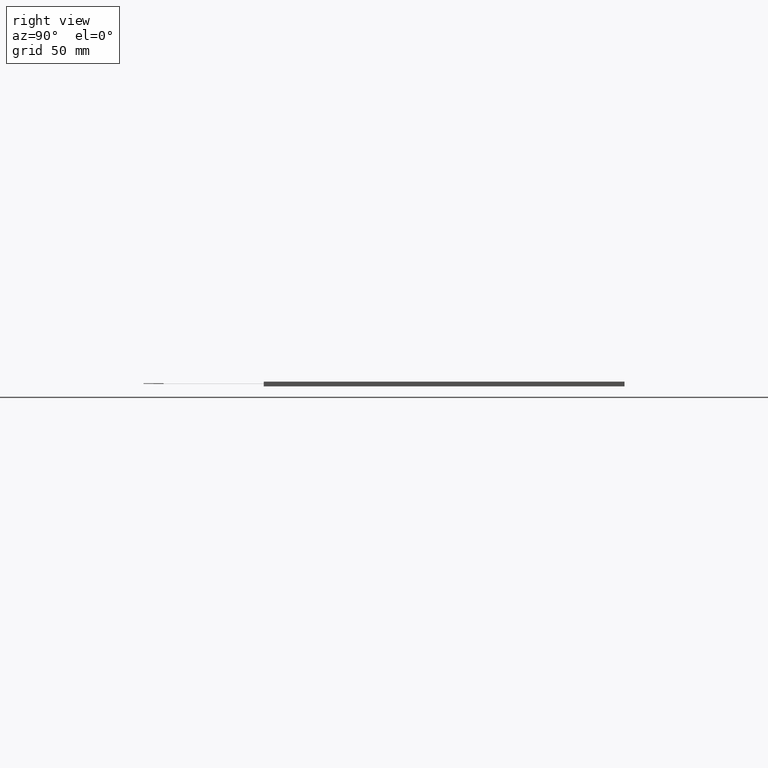
[diagram: clean part render]
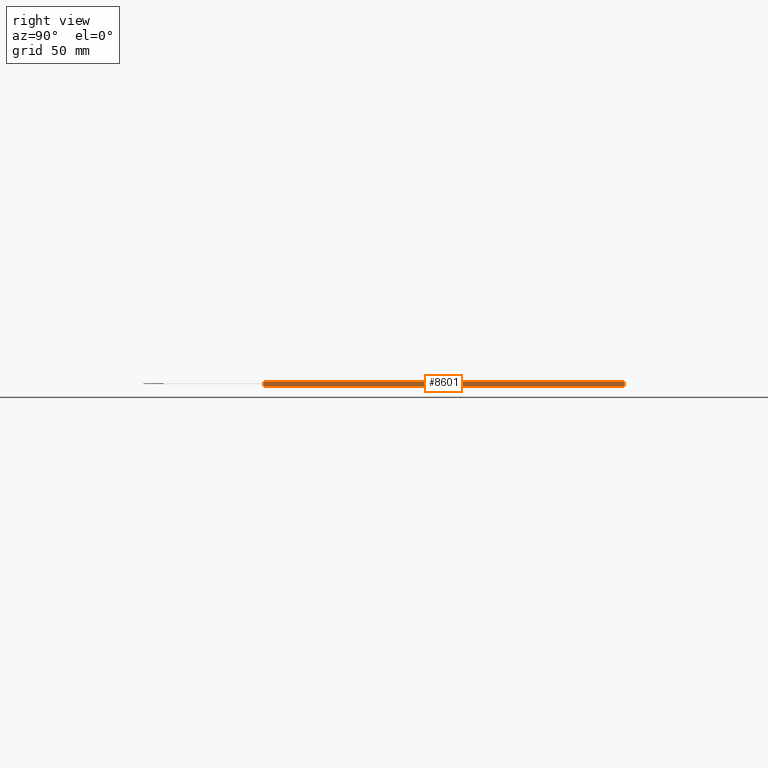
[diagram: same view with one face highlighted and labeled with its STEP entity id]
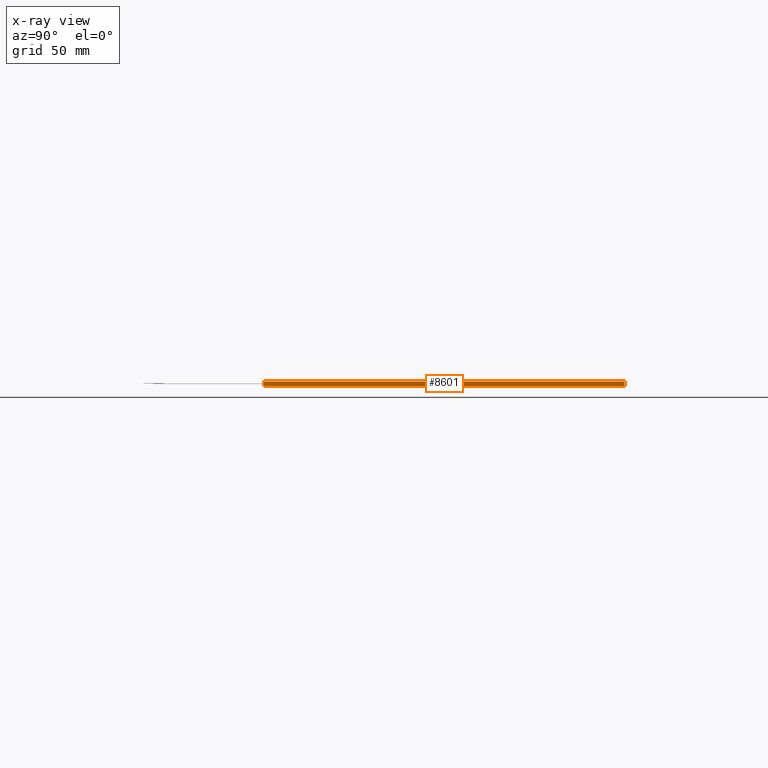
[diagram: x-ray of the same camera — body ghosted, the highlighted face saturated]
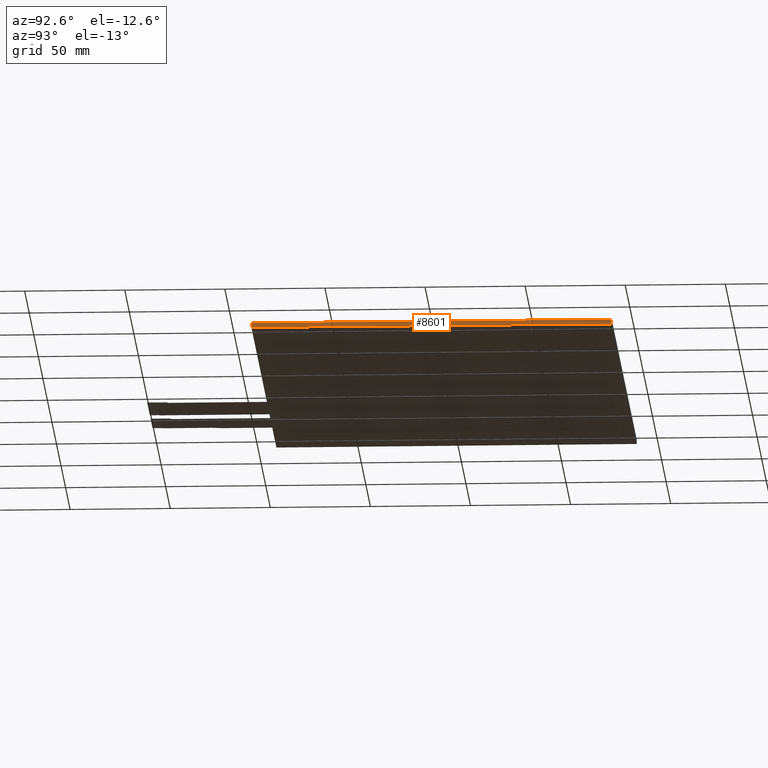
[diagram: same view with one face highlighted and labeled with its STEP entity id]
A machine part, right view. The second image highlights one B-rep face of the part: STEP entity #8601.
The next image is the same camera in x-ray: the body ghosted, the highlighted face saturated — about 0% of this face is hidden behind the body in this view.
A second angle (auxiliary view) of the same face is appended — the face is thin or edge-on in the first view.
In plain terms, the highlighted planar face has unit normal (1, 0, 0).
Its self-contained STEP definition (entity closure, byte-faithful):
#471=PLANE('',#9039);
#881=FACE_OUTER_BOUND('',#1291,.T.);
#1291=EDGE_LOOP('',(#8161,#8162,#8163,#8164));
#2497=LINE('',#13511,#3707);
#2498=LINE('',#13513,#3708);
#2499=LINE('',#13515,#3709);
#2500=LINE('',#13516,#3710);
#3707=VECTOR('',#11071,10.);
#3708=VECTOR('',#11072,10.);
#3709=VECTOR('',#11073,10.);
#3710=VECTOR('',#11074,10.);
#4531=VERTEX_POINT('',#13509);
#4532=VERTEX_POINT('',#13510);
#4533=VERTEX_POINT('',#13512);
#4534=VERTEX_POINT('',#13514);
#5745=EDGE_CURVE('',#4531,#4532,#2497,.T.);
#5746=EDGE_CURVE('',#4531,#4533,#2498,.T.);
#5747=EDGE_CURVE('',#4534,#4533,#2499,.T.);
#5748=EDGE_CURVE('',#4532,#4534,#2500,.T.);
#8161=ORIENTED_EDGE('',*,*,#5745,.F.);
#8162=ORIENTED_EDGE('',*,*,#5746,.T.);
#8163=ORIENTED_EDGE('',*,*,#5747,.F.);
#8164=ORIENTED_EDGE('',*,*,#5748,.F.);
#8601=ADVANCED_FACE('',(#881),#471,.T.);
#9039=AXIS2_PLACEMENT_3D('',#13508,#11069,#11070);
#11069=DIRECTION('center_axis',(1.,9.86864910777917E-17,0.));
#11070=DIRECTION('ref_axis',(9.86864910777917E-17,-1.,0.));
#11071=DIRECTION('',(-9.86864910777917E-17,1.,0.));
#11072=DIRECTION('',(0.,0.,-1.));
#11073=DIRECTION('',(9.86864910777917E-17,-1.,0.));
#11074=DIRECTION('',(0.,0.,-1.));
#13508=CARTESIAN_POINT('Origin',(137.33,88.15,0.));
#13509=CARTESIAN_POINT('',(137.33,-91.85,0.));
#13510=CARTESIAN_POINT('',(137.33,88.15,0.));
#13511=CARTESIAN_POINT('',(137.33,-91.85,0.));
#13512=CARTESIAN_POINT('',(137.33,-91.85,-2.35));
#13513=CARTESIAN_POINT('',(137.33,-91.85,0.));
#13514=CARTESIAN_POINT('',(137.33,88.15,-2.35));
#13515=CARTESIAN_POINT('',(137.33,-91.85,-2.35));
#13516=CARTESIAN_POINT('',(137.33,88.15,0.));